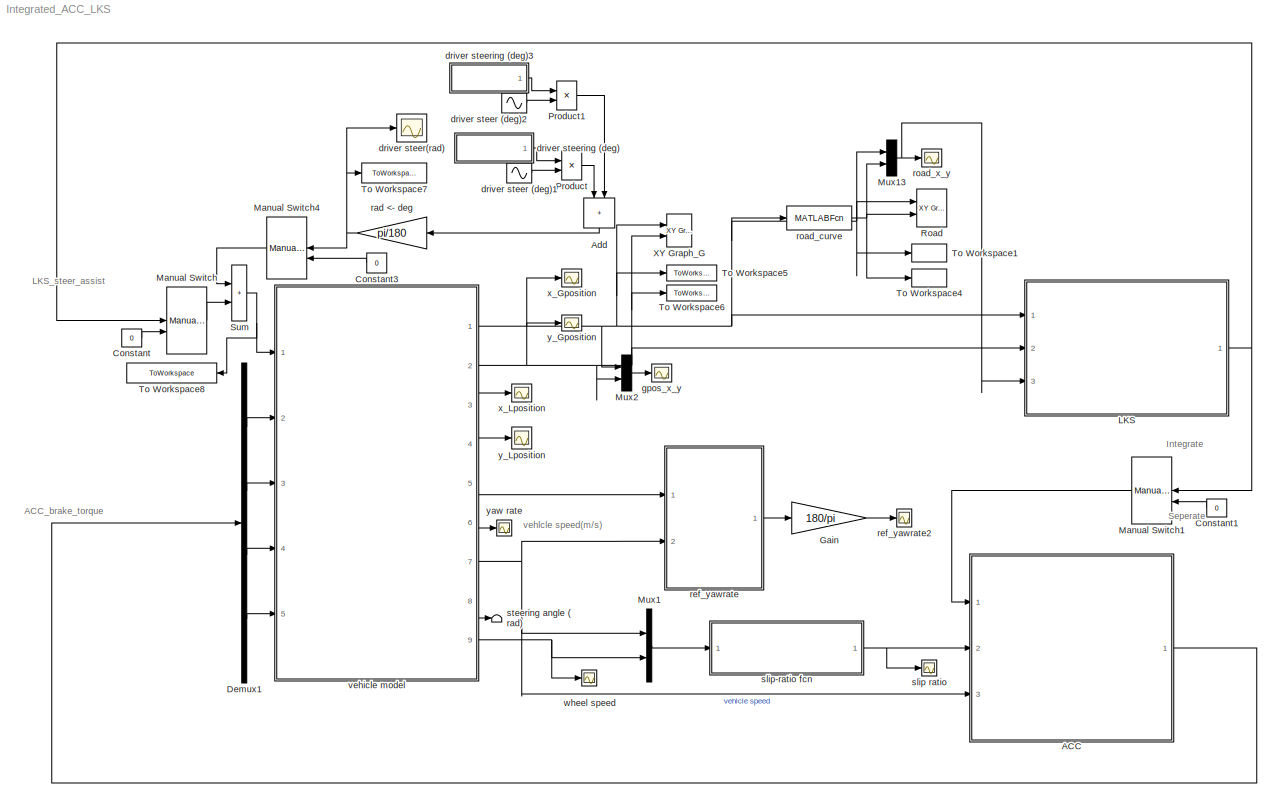
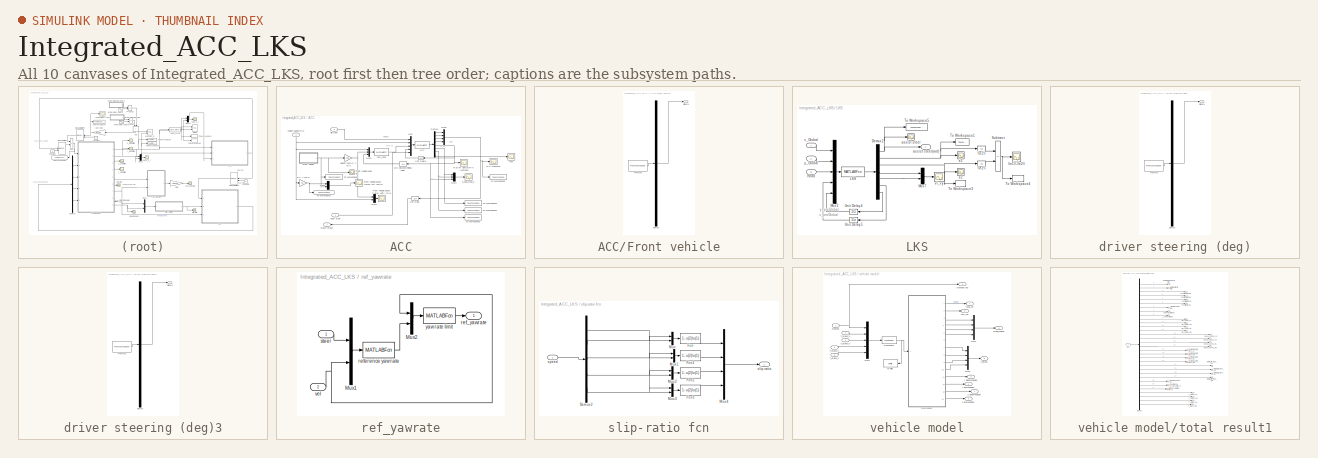
[diagram: thumbnail index - all 10 canvases of the model, root first then tree order]
MODEL Integrated_ACC_LKS
KIND model
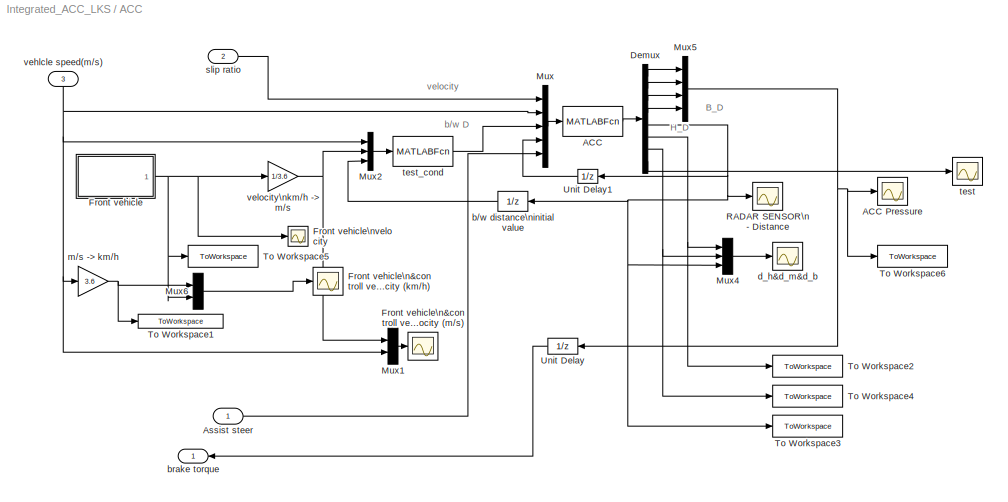
BLOCK [SubSystem] ACC
  Ports = [3, 1]
  RequestExecContextInheritance = off
  SID = 400
BLOCK [MATLABFcn] ACC/ACC
  MATLABFcn = acc2
  Ports = [1, 1]
  SID = 2
BLOCK [Scope] ACC/ACC Pressure
  Floating = off
  NumInputPorts = 1
  Ports = [1]
  SID = 3
  ScopeSpecificationString = Simulink.scopes.TimeScopeBlockCfg('CurrentConfiguration', extmgr.ConfigurationSet(extmgr.Configuration('Core','General UI',true),extmgr.Configuration('Core','Source UI',true),extmgr.Configuration('Sources','WiredSimulink',true,'DataLoggingVariableName','ScopeData8','DataLoggingSaveFormat','StructureWithTime','DataLoggingDecimation','1','DataLoggingDecimateData',true),extmgr.Configuration('Visuals'...<+1780ch>
BLOCK [Inport] ACC/Assist steer
  NameLocation = top
  SID = 471
BLOCK [Demux] ACC/Demux
  Outputs = 8
  Ports = [1, 8]
  SID = 20
BLOCK [SubSystem] ACC/Front vehicle
  ClipboardFcn = sigbuilder_block('clipboard');
  CloseFcn = sigbuilder_block('close');
  ContinueFcn = sigbuilder_block('continue')
  CopyFcn = sigbuilder_block('copy');
  DeleteFcn = sigbuilder_block('delete');
  LoadFcn = sigbuilder_block('load');
  MaskHideContents = on
  ModelCloseFcn = sigbuilder_block('modelClose');
  NameChangeFcn = sigbuilder_block('namechange');
  OpenFcn = sigbuilder_block('open',[306.75 214.5 550.5 399.75 ]);
  PauseFcn = sigbuilder_block('pause')
  Ports = [0, 1]
  PreSaveFcn = sigbuilder_block('preSave');
  RequestExecContextInheritance = off
  SID = 37
  StartFcn = sigbuilder_block('start');
  StopFcn = sigbuilder_block('stop');
  Tag = STV Subsys
BLOCK [Demux] ACC/Front vehicle/Demux
  DisplayOption = none
  Outputs = 1
  Ports = [1, 1]
  SID = 38
  Tag = STV Demux
BLOCK [FromWorkspace] ACC/Front vehicle/FromWs
  SID = 39
  SigBuilderData = DataTag0
  Tag = STV FromWs
  VariableName = tuvar
  VnvData = DataTag1
BLOCK [Outport] ACC/Front vehicle/Signal 1
  SID = 40
  Tag = STV Outport
BLOCK [Scope] ACC/Front vehicle\n&controll vehicle\nvelocity (km//h)
  Floating = off
  NumInputPorts = 1
  Ports = [1]
  SID = 198
  ScopeSpecificationString = Simulink.scopes.TimeScopeBlockCfg('CurrentConfiguration', extmgr.ConfigurationSet(extmgr.Configuration('Core','General UI',true),extmgr.Configuration('Core','Source UI',true),extmgr.Configuration('Sources','WiredSimulink',true,'DataLoggingVariableName','ScopeData15','DataLoggingSaveFormat','StructureWithTime','DataLoggingDecimation','1','DataLoggingDecimateData',true),extmgr.Configuration('Visuals...<+1788ch>
BLOCK [Scope] ACC/Front vehicle\n&controll vehicle\nvelocity (m//s)
  Floating = off
  NumInputPorts = 1
  Ports = [1]
  SID = 490
  ScopeSpecificationString = Simulink.scopes.TimeScopeBlockCfg('CurrentConfiguration', extmgr.ConfigurationSet(extmgr.Configuration('Core','General UI',true),extmgr.Configuration('Core','Source UI',true),extmgr.Configuration('Sources','WiredSimulink',true,'DataLoggingVariableName','ScopeData19','DataLoggingSaveFormat','StructureWithTime','DataLoggingDecimation','1','DataLoggingDecimateData',true),extmgr.Configuration('Visuals...<+1774ch>
BLOCK [Scope] ACC/Front vehicle\nvelocity
  Floating = off
  NumInputPorts = 1
  Ports = [1]
  SID = 23
  ScopeSpecificationString = Simulink.scopes.TimeScopeBlockCfg('CurrentConfiguration', extmgr.ConfigurationSet(extmgr.Configuration('Core','General UI',true),extmgr.Configuration('Core','Source UI',true),extmgr.Configuration('Sources','WiredSimulink',true,'DataLoggingVariableName','ScopeData12','DataLoggingSaveFormat','StructureWithTime','DataLoggingDecimation','1','DataLoggingDecimateData',true),extmgr.Configuration('Visuals...<+1741ch>
BLOCK [Mux] ACC/Mux
  DisplayOption = bar
  Inputs = 5
  Ports = [5, 1]
  SID = 30
BLOCK [Mux] ACC/Mux1
  DisplayOption = bar
  Inputs = 2
  Ports = [2, 1]
  SID = 491
BLOCK [Mux] ACC/Mux2
  DisplayOption = bar
  Inputs = 3
  Ports = [3, 1]
  SID = 32
BLOCK [Mux] ACC/Mux4
  DisplayOption = bar
  Inputs = 3
  Ports = [3, 1]
  SID = 34
BLOCK [Mux] ACC/Mux5
  DisplayOption = bar
  Ports = [4, 1]
  SID = 35
BLOCK [Mux] ACC/Mux6
  DisplayOption = bar
  Inputs = 2
  Ports = [2, 1]
  SID = 197
BLOCK [Scope] ACC/RADAR SENSOR\n- Distance
  Floating = off
  NumInputPorts = 1
  Ports = [1]
  SID = 36
  ScopeSpecificationString = Simulink.scopes.TimeScopeBlockCfg('CurrentConfiguration', extmgr.ConfigurationSet(extmgr.Configuration('Core','General UI',true),extmgr.Configuration('Core','Source UI',true),extmgr.Configuration('Sources','WiredSimulink',true,'DataLoggingVariableName','ScopeData4','DataLoggingSaveFormat','StructureWithTime','DataLoggingDecimation','1','DataLoggingDecimateData',true),extmgr.Configuration('Visuals'...<+1765ch>
BLOCK [ToWorkspace] ACC/To Workspace1
  MaxDataPoints = inf
  Ports = [1]
  SID = 460
  SampleTime = -1
  VariableName = lon_speed_int
BLOCK [ToWorkspace] ACC/To Workspace2
  MaxDataPoints = inf
  Ports = [1]
  SID = 461
  SampleTime = -1
  VariableName = headway_di
BLOCK [ToWorkspace] ACC/To Workspace3
  MaxDataPoints = inf
  Ports = [1]
  SID = 462
  SampleTime = -1
  VariableName = between_di
BLOCK [ToWorkspace] ACC/To Workspace4
  MaxDataPoints = inf
  Ports = [1]
  SID = 463
  SampleTime = -1
  VariableName = min_di
BLOCK [ToWorkspace] ACC/To Workspace5
  MaxDataPoints = inf
  Ports = [1]
  SID = 459
  SampleTime = -1
  VariableName = front_speed
BLOCK [ToWorkspace] ACC/To Workspace6
  MaxDataPoints = inf
  Ports = [1]
  SID = 464
  SampleTime = -1
  VariableName = brake_torque
BLOCK [UnitDelay] ACC/Unit Delay
  HasFrameUpgradeWarning = on
  NameLocation = top
  SID = 46
  SampleTime = 0.005
BLOCK [UnitDelay] ACC/Unit Delay1
  HasFrameUpgradeWarning = on
  InitialCondition = 55
  NameLocation = top
  SID = 185
  SampleTime = -1
BLOCK [UnitDelay] ACC/b//w distance\ninitial value
  HasFrameUpgradeWarning = on
  InitialCondition = 55
  SID = 47
  SampleTime = -1
BLOCK [Outport] ACC/brake torque
  SID = 403
BLOCK [Scope] ACC/d_h&d_m&d_b
  Floating = off
  NumInputPorts = 1
  Ports = [1]
  SID = 245
  ScopeSpecificationString = Simulink.scopes.TimeScopeBlockCfg('CurrentConfiguration', extmgr.ConfigurationSet(extmgr.Configuration('Core','General UI',true),extmgr.Configuration('Core','Source UI',true),extmgr.Configuration('Sources','WiredSimulink',true,'DataLoggingVariableName','ScopeData20','DataLoggingSaveFormat','StructureWithTime','DataLoggingDecimation','1','DataLoggingDecimateData',true),extmgr.Configuration('Visuals...<+1786ch>
BLOCK [Gain] ACC/m//s -> km//h
  Gain = 3.6
  SID = 317
BLOCK [Inport] ACC/slip ratio
  Port = 2
  SID = 472
BLOCK [Scope] ACC/test
  Floating = off
  NumInputPorts = 1
  Ports = [1]
  SID = 479
  ScopeSpecificationString = Simulink.scopes.TimeScopeBlockCfg('CurrentConfiguration', extmgr.ConfigurationSet(extmgr.Configuration('Core','General UI',true),extmgr.Configuration('Core','Source UI',true),extmgr.Configuration('Sources','WiredSimulink',true,'DataLoggingVariableName','ScopeData13','DataLoggingSaveFormat','StructureWithTime','DataLoggingDecimation','1','DataLoggingDecimateData',true),extmgr.Configuration('Visuals...<+1738ch>
BLOCK [MATLABFcn] ACC/test_cond
  MATLABFcn = test_Condition
  Ports = [1, 1]
  SID = 100
BLOCK [Inport] ACC/vehlcle speed(m//s)
  NameLocation = right
  Port = 3
  SID = 473
BLOCK [Gain] ACC/velocity\nkm//h -> m//s
  Gain = 1/3.6
  OutDataTypeStr = Inherit: Same as input
  ParamDataTypeStr = Inherit: Same as input
  SID = 173
  SaturateOnIntegerOverflow = on
BLOCK [Sum] Add
  IconShape = rectangular
  NameLocation = left
  Ports = [2, 1]
  SID = 369
BLOCK [Constant] Constant
  SID = 16
  Value = 0
BLOCK [Constant] Constant1
  NameLocation = top
  SID = 476
  Value = 0
BLOCK [Constant] Constant3
  SID = 19
  Value = 0
BLOCK [Demux] Demux1
  DisplayOption = none
  Ports = [1, 4]
  SID = 21
BLOCK [Gain] Gain
  Gain = 180/pi
  OutDataTypeStr = Inherit: Same as input
  ParamDataTypeStr = Inherit: Same as input
  SID = 24
  SaturateOnIntegerOverflow = on
BLOCK [SubSystem] LKS
  Ports = [3, 1]
  RequestExecContextInheritance = off
  SID = 395
BLOCK [Demux] LKS/Demux2
  Outputs = 7
  Ports = [1, 7]
  SID = 333
BLOCK [MATLABFcn] LKS/LKS
  MATLABFcn = lks
  Ports = [1, 1]
  SID = 332
BLOCK [Mux] LKS/Mux3
  DisplayOption = bar
  Inputs = 5
  Ports = [5, 1]
  SID = 319
BLOCK [Mux] LKS/Mux7
  DisplayOption = bar
  Inputs = 2
  Ports = [2, 1]
  SID = 340
BLOCK [Inport] LKS/Road
  Port = 3
  SID = 398
BLOCK [Sum] LKS/Subtract
  IconShape = rectangular
  Inputs = +-
  Ports = [2, 1]
  SID = 405
BLOCK [ToWorkspace] LKS/To Workspace1
  MaxDataPoints = inf
  Ports = [1]
  SID = 466
  SampleTime = -1
  VariableName = e1
BLOCK [ToWorkspace] LKS/To Workspace3
  MaxDataPoints = inf
  Ports = [1]
  SID = 467
  SampleTime = -1
  VariableName = e2
BLOCK [ToWorkspace] LKS/To Workspace4
  MaxDataPoints = inf
  Ports = [1]
  SID = 468
  SampleTime = -1
  VariableName = e1_e2
BLOCK [ToWorkspace] LKS/To Workspace5
  MaxDataPoints = inf
  Ports = [1]
  SID = 465
  SampleTime = -1
  VariableName = assist_steer
BLOCK [UnitDelay] LKS/Unit Delay4
  HasFrameUpgradeWarning = on
  NameLocation = top
  SID = 344
  SampleTime = -1
BLOCK [UnitDelay] LKS/Unit Delay5
  HasFrameUpgradeWarning = on
  NameLocation = top
  SID = 345
  SampleTime = -1
BLOCK [Abs] LKS/\\e1\\
  SID = 406
  SaturateOnIntegerOverflow = off
BLOCK [Scope] LKS/<path>
  Floating = off
  NumInputPorts = 1
  Ports = [1]
  SID = 409
  ScopeSpecificationString = C++SS(StrPVP('Location','[1685, 56, 2956, 1018]'),StrPVP('Open','off'),StrPVP('ZoomMode','xonly'),MxPVP('AxesTitles',54,'struct(''axes1'',''%<SignalLabel>'')'),MxPVP('ScopeGraphics',57,'struct(''FigureColor'',''[0.5 0.5 0.5]'',''AxesColor'',''[0 0 0]'',''AxesTickColor'',''[1 1 1]'',''LineColors'',''[1 1 0;1 0 1;0 1 1;1 0 0;0 1 0;0 0 1]'',''LineStyles'',''-|-|-|-|-|-'',''LineWidths'',''[0.5 0.5 0.5...<+300ch>
BLOCK [Abs] LKS/\\e2\\
  SID = 408
  SaturateOnIntegerOverflow = off
BLOCK [Scope] LKS/assist steer
  Floating = off
  NumInputPorts = 1
  Ports = [1]
  SID = 348
  ScopeSpecificationString = C++SS(StrPVP('Location','[5, 52, 1685, 1015]'),StrPVP('Open','off'),StrPVP('ZoomMode','xonly'),MxPVP('AxesTitles',54,'struct(''axes1'',''%<SignalLabel>'')'),MxPVP('ScopeGraphics',57,'struct(''FigureColor'',''[0.5 0.5 0.5]'',''AxesColor'',''[0 0 0]'',''AxesTickColor'',''[1 1 1]'',''LineColors'',''[1 1 0;1 0 1;0 1 1;1 0 0;0 1 0;0 0 1]'',''LineStyles'',''-|-|-|-|-|-'',''LineWidths'',''[0.5 0.5 0.5 0....<+366ch>
BLOCK [Outport] LKS/assist steer(rad)
  SID = 399
BLOCK [Scope] LKS/e1
  Floating = off
  NumInputPorts = 1
  Ports = [1]
  SID = 337
  ScopeSpecificationString = C++SS(StrPVP('Location','[395, 52, 1675, 995]'),StrPVP('Open','off'),MxPVP('AxesTitles',54,'struct(''axes1'',''%<SignalLabel>'')'),MxPVP('ScopeGraphics',57,'struct(''FigureColor'',''[0.5 0.5 0.5]'',''AxesColor'',''[0 0 0]'',''AxesTickColor'',''[1 1 1]'',''LineColors'',''[1 1 0;1 0 1;0 1 1;1 0 0;0 1 0;0 0 1]'',''LineStyles'',''-|-|-|-|-|-'',''LineWidths'',''[0.5 0.5 0.5 0.5 0.5 0.5]'',''MarkerStyle...<+340ch>
BLOCK [Scope] LKS/e2
  Floating = off
  NumInputPorts = 1
  Ports = [1]
  SID = 338
  ScopeSpecificationString = C++SS(StrPVP('Location','[1, 52, 1681, 1015]'),StrPVP('Open','off'),MxPVP('AxesTitles',54,'struct(''axes1'',''%<SignalLabel>'')'),MxPVP('ScopeGraphics',57,'struct(''FigureColor'',''[0.5 0.5 0.5]'',''AxesColor'',''[0 0 0]'',''AxesTickColor'',''[1 1 1]'',''LineColors'',''[1 1 0;1 0 1;0 1 1;1 0 0;0 1 0;0 0 1]'',''LineStyles'',''-|-|-|-|-|-'',''LineWidths'',''[0.5 0.5 0.5 0.5 0.5 0.5]'',''MarkerStyles...<+339ch>
BLOCK [Scope] LKS/vl_xy
  Floating = off
  NumInputPorts = 1
  Ports = [1]
  SID = 339
  ScopeSpecificationString = C++SS(StrPVP('Location','[1680, 59, 2960, 1002]'),StrPVP('Open','off'),MxPVP('AxesTitles',54,'struct(''axes1'',''%<SignalLabel>'')'),MxPVP('ScopeGraphics',57,'struct(''FigureColor'',''[0.5 0.5 0.5]'',''AxesColor'',''[0 0 0]'',''AxesTickColor'',''[1 1 1]'',''LineColors'',''[1 1 0;1 0 1;0 1 1;1 0 0;0 1 0;0 0 1]'',''LineStyles'',''-|-|-|-|-|-'',''LineWidths'',''[0.5 0.5 0.5 0.5 0.5 0.5]'',''MarkerSty...<+342ch>
BLOCK [Inport] LKS/x_Global
  SID = 396
BLOCK [Inport] LKS/y_Global
  Port = 2
  SID = 397
BLOCK [ManualSwitch] Manual Switch
  SID = 25
BLOCK [ManualSwitch] Manual Switch1
  CurrentSetting = 0
  NameLocation = top
  SID = 475
BLOCK [ManualSwitch] Manual Switch4
  NameLocation = top
  SID = 29
BLOCK [Mux] Mux1
  DisplayOption = bar
  Inputs = 2
  Ports = [2, 1]
  SID = 31
BLOCK [Mux] Mux13
  DisplayOption = bar
  Inputs = 2
  Ports = [2, 1]
  SID = 325
BLOCK [Mux] Mux2
  DisplayOption = bar
  Inputs = 2
  Ports = [2, 1]
  SID = 494
BLOCK [Product] Product
  Ports = [2, 1]
  RndMeth = Zero
  SID = 352
BLOCK [Product] Product1
  Ports = [2, 1]
  RndMeth = Zero
  SID = 487
BLOCK [Reference] Road  REF=simulink/Sinks/XY Graph
  Ports = [2]
  RTWMemSecDataConstants = Inherit from model
  RTWMemSecDataInternal = Inherit from model
  RTWMemSecDataParameters = Inherit from model
  RTWMemSecFuncExecute = Inherit from model
  RTWMemSecFuncInitTerm = Inherit from model
  SID = 322
  SourceBlock = simulink/Sinks/XY Graph
  SourceProductBaseCode = SL
  SourceType = XY scope.
  st = 0
  xmax = 500
  xmin = 0
  ymax = 1
  ymin = -100
BLOCK [Sum] Sum
  IconShape = rectangular
  Inputs = |++
  Ports = [2, 1]
  SID = 41
  SaturateOnIntegerOverflow = on
BLOCK [ToWorkspace] To Workspace1
  MaxDataPoints = inf
  Ports = [1]
  SID = 457
  SampleTime = -1
  VariableName = Roadx
BLOCK [ToWorkspace] To Workspace4
  MaxDataPoints = inf
  Ports = [1]
  SID = 458
  SampleTime = -1
  VariableName = Roady
BLOCK [ToWorkspace] To Workspace5
  MaxDataPoints = inf
  Ports = [1]
  SID = 454
  SampleTime = -1
  VariableName = xgp_with
BLOCK [ToWorkspace] To Workspace6
  MaxDataPoints = inf
  Ports = [1]
  SID = 456
  SampleTime = -1
  VariableName = ygp_with
BLOCK [ToWorkspace] To Workspace7
  MaxDataPoints = inf
  Ports = [1]
  SID = 469
  SampleTime = -1
  VariableName = driver_steer
BLOCK [ToWorkspace] To Workspace8
  MaxDataPoints = inf
  NameLocation = top
  Ports = [1]
  SID = 470
  SampleTime = -1
  VariableName = command_steer
BLOCK [Reference] XY Graph_G  REF=simulink/Sinks/XY Graph
  Ports = [2]
  RTWMemSecDataConstants = Inherit from model
  RTWMemSecDataInternal = Inherit from model
  RTWMemSecDataParameters = Inherit from model
  RTWMemSecFuncExecute = Inherit from model
  RTWMemSecFuncInitTerm = Inherit from model
  SID = 327
  SourceBlock = simulink/Sinks/XY Graph
  SourceProductBaseCode = SL
  SourceType = XY scope.
  st = 0
  xmax = 500
  xmin = 0
  ymax = 1
  ymin = -100
BLOCK [Sin] driver steer (deg)1
  Amplitude = 0.8
  Frequency = 0.34907
  Phase = 0.34898
  Ports = [0, 1]
  SID = 368
  SampleTime = 0
BLOCK [Sin] driver steer (deg)2
  Amplitude = 0.8
  Frequency = 0.165347
  Phase = 2.64
  Ports = [0, 1]
  SID = 482
  SampleTime = 0
BLOCK [Scope] driver steer(rad)
  Floating = off
  NumInputPorts = 1
  Ports = [1]
  SID = 180
  ScopeSpecificationString = C++SS(StrPVP('Location','[5, 52, 1685, 1015]'),StrPVP('Open','off'),MxPVP('AxesTitles',54,'struct(''axes1'',''%<SignalLabel>'')'),MxPVP('ScopeGraphics',57,'struct(''FigureColor'',''[0.5 0.5 0.5]'',''AxesColor'',''[0 0 0]'',''AxesTickColor'',''[1 1 1]'',''LineColors'',''[1 1 0;1 0 1;0 1 1;1 0 0;0 1 0;0 0 1]'',''LineStyles'',''-|-|-|-|-|-'',''LineWidths'',''[0.5 0.5 0.5 0.5 0.5 0.5]'',''MarkerStyles...<+340ch>
BLOCK [SubSystem] driver steering (deg)
  ClipboardFcn = sigbuilder_block('clipboard');
  CloseFcn = sigbuilder_block('close');
  ContinueFcn = sigbuilder_block('continue')
  CopyFcn = sigbuilder_block('copy');
  DeleteFcn = sigbuilder_block('delete');
  LoadFcn = sigbuilder_block('load');
  MaskHideContents = on
  ModelCloseFcn = sigbuilder_block('modelClose');
  NameChangeFcn = sigbuilder_block('namechange');
  NameLocation = top
  OpenFcn = sigbuilder_block('open',[323.25 135.75 558.75 274.5 ]);
  PauseFcn = sigbuilder_block('pause')
  Ports = [0, 1]
  PreSaveFcn = sigbuilder_block('preSave');
  RequestExecContextInheritance = off
  SID = 364
  StartFcn = sigbuilder_block('start');
  StopFcn = sigbuilder_block('stop');
  Tag = STV Subsys
BLOCK [Demux] driver steering (deg)/Demux
  DisplayOption = none
  Outputs = 1
  Ports = [1, 1]
  SID = 365
  Tag = STV Demux
BLOCK [FromWorkspace] driver steering (deg)/FromWs
  SID = 366
  SigBuilderData = DataTag2
  Tag = STV FromWs
  VariableName = tuvar
  VnvData = DataTag3
BLOCK [Outport] driver steering (deg)/Signal 1
  SID = 367
  Tag = STV Outport
BLOCK [SubSystem] driver steering (deg)3
  ClipboardFcn = sigbuilder_block('clipboard');
  CloseFcn = sigbuilder_block('close');
  ContinueFcn = sigbuilder_block('continue')
  CopyFcn = sigbuilder_block('copy');
  DeleteFcn = sigbuilder_block('delete');
  LoadFcn = sigbuilder_block('load');
  MaskHideContents = on
  ModelCloseFcn = sigbuilder_block('modelClose');
  NameChangeFcn = sigbuilder_block('namechange');
  NameLocation = top
  OpenFcn = sigbuilder_block('open',[323.25 135.75 558.75 274.5 ]);
  PauseFcn = sigbuilder_block('pause')
  Ports = [0, 1]
  PreSaveFcn = sigbuilder_block('preSave');
  RequestExecContextInheritance = off
  SID = 483
  StartFcn = sigbuilder_block('start');
  StopFcn = sigbuilder_block('stop');
  Tag = STV Subsys
BLOCK [Demux] driver steering (deg)3/Demux
  DisplayOption = none
  Outputs = 1
  Ports = [1, 1]
  SID = 484
  Tag = STV Demux
BLOCK [FromWorkspace] driver steering (deg)3/FromWs
  SID = 485
  SigBuilderData = DataTag4
  Tag = STV FromWs
  VariableName = tuvar
  VnvData = DataTag5
BLOCK [Outport] driver steering (deg)3/Signal 1
  SID = 486
  Tag = STV Outport
BLOCK [Scope] gpos_x_y
  Floating = off
  NumInputPorts = 1
  Ports = [1]
  SID = 495
  ScopeSpecificationString = C++SS(StrPVP('Location','[395, 52, 1675, 995]'),StrPVP('Open','off'),MxPVP('AxesTitles',54,'struct(''axes1'',''%<SignalLabel>'')'),MxPVP('ScopeGraphics',57,'struct(''FigureColor'',''[0.5 0.5 0.5]'',''AxesColor'',''[0 0 0]'',''AxesTickColor'',''[1 1 1]'',''LineColors'',''[1 1 0;1 0 1;0 1 1;1 0 0;0 1 0;0 0 1]'',''LineStyles'',''-|-|-|-|-|-'',''LineWidths'',''[0.5 0.5 0.5 0.5 0.5 0.5]'',''MarkerStyle...<+341ch>
BLOCK [Gain] rad <- deg
  Gain = pi/180
  NameLocation = top
  OutDataTypeStr = Inherit: Same as input
  ParamDataTypeStr = Inherit: Same as input
  SID = 49
  SaturateOnIntegerOverflow = on
BLOCK [SubSystem] ref_yawrate
  Ports = [2, 1]
  RequestExecContextInheritance = off
  SID = 64
BLOCK [Mux] ref_yawrate/Mux1
  DisplayOption = bar
  Inputs = 2
  Ports = [2, 1]
  SID = 67
BLOCK [Mux] ref_yawrate/Mux2
  DisplayOption = bar
  Inputs = 2
  Ports = [2, 1]
  SID = 68
BLOCK [Outport] ref_yawrate/ref_yawrate
  SID = 71
BLOCK [MATLABFcn] ref_yawrate/reference yaw rate
  MATLABFcn = ref_yawrate
  Ports = [1, 1]
  SID = 69
BLOCK [Inport] ref_yawrate/steer
  SID = 65
BLOCK [Inport] ref_yawrate/vel
  Port = 2
  SID = 66
BLOCK [MATLABFcn] ref_yawrate/yaw rate limit
  MATLABFcn = yaw_rate_limit
  Ports = [1, 1]
  SID = 70
BLOCK [Scope] ref_yawrate2
  Floating = off
  NumInputPorts = 1
  Ports = [1]
  SID = 72
  ScopeSpecificationString = Simulink.scopes.TimeScopeBlockCfg('CurrentConfiguration', extmgr.ConfigurationSet(extmgr.Configuration('Core','General UI',true),extmgr.Configuration('Core','Source UI',true),extmgr.Configuration('Sources','WiredSimulink',true,'DataLoggingVariableName','ScopeData1','DataLoggingSaveFormat','StructureWithTime','DataLoggingDecimation','1','DataLoggingDecimateData',true),extmgr.Configuration('Visuals'...<+1734ch>
BLOCK [MATLABFcn] road_curve
  MATLABFcn = road_curve
  Ports = [1, 1]
  SID = 321
BLOCK [Scope] road_x_y
  Floating = off
  NumInputPorts = 1
  Ports = [1]
  SID = 326
  ScopeSpecificationString = C++SS(StrPVP('Location','[395, 52, 1675, 995]'),StrPVP('Open','off'),MxPVP('AxesTitles',54,'struct(''axes1'',''%<SignalLabel>'')'),MxPVP('ScopeGraphics',57,'struct(''FigureColor'',''[0.5 0.5 0.5]'',''AxesColor'',''[0 0 0]'',''AxesTickColor'',''[1 1 1]'',''LineColors'',''[1 1 0;1 0 1;0 1 1;1 0 0;0 1 0;0 0 1]'',''LineStyles'',''-|-|-|-|-|-'',''LineWidths'',''[0.5 0.5 0.5 0.5 0.5 0.5]'',''MarkerStyle...<+308ch>
BLOCK [Scope] slip ratio
  Floating = off
  NumInputPorts = 1
  Ports = [1]
  SID = 493
  ScopeSpecificationString = Simulink.scopes.TimeScopeBlockCfg('CurrentConfiguration', extmgr.ConfigurationSet(extmgr.Configuration('Core','General UI',true),extmgr.Configuration('Core','Source UI',true),extmgr.Configuration('Sources','WiredSimulink',true,'DataLoggingVariableName','ScopeData21','DataLoggingSaveFormat','StructureWithTime','DataLoggingDecimation','1','DataLoggingDecimateData',true),extmgr.Configuration('Visuals...<+1805ch>
BLOCK [SubSystem] slip-ratio fcn
  Ports = [1, 1]
  RequestExecContextInheritance = off
  SID = 86
BLOCK [Demux] slip-ratio fcn/Demux2
  DisplayOption = none
  Outputs = 5
  Ports = [1, 5]
  SID = 88
BLOCK [Fcn] slip-ratio fcn/Fcn
  Expr = 1- u(2)/u(1)
  SID = 89
BLOCK [Fcn] slip-ratio fcn/Fcn1
  Expr = 1- u(2)/u(1)
  SID = 90
BLOCK [Fcn] slip-ratio fcn/Fcn2
  Expr = 1- u(2)/u(1)
  SID = 91
BLOCK [Fcn] slip-ratio fcn/Fcn3
  Expr = 1- u(2)/u(1)
  SID = 92
BLOCK [Mux] slip-ratio fcn/Mux
  DisplayOption = bar
  Inputs = 2
  Ports = [2, 1]
  SID = 93
BLOCK [Mux] slip-ratio fcn/Mux1
  DisplayOption = bar
  Inputs = 2
  Ports = [2, 1]
  SID = 94
BLOCK [Mux] slip-ratio fcn/Mux2
  DisplayOption = bar
  Inputs = 2
  Ports = [2, 1]
  SID = 95
BLOCK [Mux] slip-ratio fcn/Mux3
  DisplayOption = bar
  Inputs = 2
  Ports = [2, 1]
  SID = 96
BLOCK [Mux] slip-ratio fcn/Mux4
  DisplayOption = bar
  Ports = [4, 1]
  SID = 97
BLOCK [Outport] slip-ratio fcn/slip-ratio
  SID = 98
BLOCK [Inport] slip-ratio fcn/speed
  SID = 87
BLOCK [Terminator] steering angle ( rad)
  SID = 313
BLOCK [SubSystem] vehicle model
  Ports = [5, 9]
  RequestExecContextInheritance = off
  SID = 118
BLOCK [Outport] vehicle model/Long_vel
  Port = 7
  SID = 310
BLOCK [Mux] vehicle model/Mux1
  DisplayOption = bar
  Ports = [4, 1]
  SID = 124
BLOCK [Mux] vehicle model/Mux2
  DisplayOption = bar
  Inputs = 5
  Ports = [5, 1]
  SID = 125
BLOCK [Mux] vehicle model/Mux3
  DisplayOption = bar
  Ports = [4, 1]
  SID = 126
BLOCK [S-Function] vehicle model/S-Function1
  EnableBusSupport = off
  FunctionName = csfn_7dof
  Ports = [1, 1]
  SFcnIsStateOwnerBlock = off
  SFunctionDeploymentMode = off
  SID = 128
BLOCK [Outport] vehicle model/T_Brake
  Port = 8
  SID = 311
BLOCK [Inport] vehicle model/T_brake_fl
  Port = 2
  SID = 120
BLOCK [Inport] vehicle model/T_brake_fr
  Port = 3
  SID = 121
BLOCK [Inport] vehicle model/T_brake_rl
  Port = 4
  SID = 122
BLOCK [Inport] vehicle model/T_brake_rr
  Port = 5
  SID = 123
BLOCK [ToFile] vehicle model/To File1
  Filename = steer.mat
  MatrixName = steer
  NameLocation = top
  Ports = [1]
  SID = 129
BLOCK [Inport] vehicle model/steering
  SID = 119
BLOCK [Outport] vehicle model/steering(rad)
  Port = 5
  SID = 308
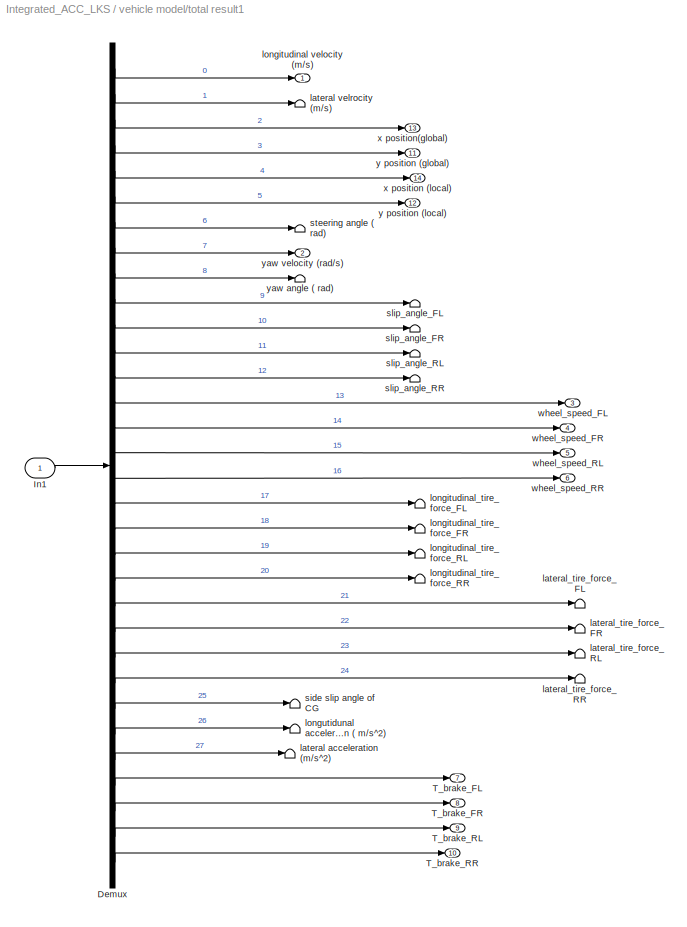
BLOCK [SubSystem] vehicle model/total result1
  Ports = [1, 14]
  RequestExecContextInheritance = off
  SID = 130
BLOCK [Demux] vehicle model/total result1/Demux
  DisplayOption = none
  Outputs = 32
  Ports = [1, 32]
  SID = 132
BLOCK [Inport] vehicle model/total result1/In1
  NameLocation = top
  SID = 131
BLOCK [Outport] vehicle model/total result1/T_brake_FL
  Port = 7
  SID = 156
BLOCK [Outport] vehicle model/total result1/T_brake_FR
  Port = 8
  SID = 157
BLOCK [Outport] vehicle model/total result1/T_brake_RL
  Port = 9
  SID = 158
BLOCK [Outport] vehicle model/total result1/T_brake_RR
  Port = 10
  SID = 159
BLOCK [Terminator] vehicle model/total result1/lateral acceleration (m//s^2)
  SID = 133
BLOCK [Terminator] vehicle model/total result1/lateral velrocity (m//s)
  SID = 134
BLOCK [Terminator] vehicle model/total result1/lateral_tire_force_FL
  SID = 135
BLOCK [Terminator] vehicle model/total result1/lateral_tire_force_FR
  SID = 136
BLOCK [Terminator] vehicle model/total result1/lateral_tire_force_RL
  SID = 137
BLOCK [Terminator] vehicle model/total result1/lateral_tire_force_RR
  SID = 138
BLOCK [Outport] vehicle model/total result1/longitudinal velocity  (m//s)
  SID = 150
BLOCK [Terminator] vehicle model/total result1/longitudinal_tire_force_FL
  SID = 139
BLOCK [Terminator] vehicle model/total result1/longitudinal_tire_force_FR
  SID = 140
BLOCK [Terminator] vehicle model/total result1/longitudinal_tire_force_RL
  SID = 141
BLOCK [Terminator] vehicle model/total result1/longitudinal_tire_force_RR
  SID = 142
BLOCK [Terminator] vehicle model/total result1/longutidunal acceleration ( m//s^2)
  SID = 143
BLOCK [Terminator] vehicle model/total result1/side slip angle of CG
  SID = 144
BLOCK [Terminator] vehicle model/total result1/slip_angle_FL
  SID = 300
BLOCK [Terminator] vehicle model/total result1/slip_angle_FR
  SID = 301
BLOCK [Terminator] vehicle model/total result1/slip_angle_RL
  SID = 302
BLOCK [Terminator] vehicle model/total result1/slip_angle_RR
  SID = 303
BLOCK [Terminator] vehicle model/total result1/steering angle ( rad)
  SID = 145
BLOCK [Outport] vehicle model/total result1/wheel_speed_FL
  Port = 3
  SID = 152
BLOCK [Outport] vehicle model/total result1/wheel_speed_FR
  Port = 4
  SID = 153
BLOCK [Outport] vehicle model/total result1/wheel_speed_RL
  Port = 5
  SID = 154
BLOCK [Outport] vehicle model/total result1/wheel_speed_RR
  Port = 6
  SID = 155
BLOCK [Outport] vehicle model/total result1/x position (local)
  Port = 14
  SID = 213
BLOCK [Outport] vehicle model/total result1/x position(global)
  Port = 13
  SID = 212
BLOCK [Outport] vehicle model/total result1/y position (global)
  Port = 11
  SID = 160
BLOCK [Outport] vehicle model/total result1/y position (local)
  Port = 12
  SID = 211
BLOCK [Terminator] vehicle model/total result1/yaw angle ( rad)
  SID = 149
BLOCK [Outport] vehicle model/total result1/yaw velocity (rad//s)
  Port = 2
  SID = 151
BLOCK [Outport] vehicle model/wheel_speed
  Port = 9
  SID = 312
BLOCK [Outport] vehicle model/x global position
  SID = 304
BLOCK [Outport] vehicle model/x local position
  Port = 3
  SID = 306
BLOCK [Outport] vehicle model/y global position
  Port = 2
  SID = 305
BLOCK [Outport] vehicle model/y local position
  Port = 4
  SID = 307
BLOCK [Outport] vehicle model/yaw_vel
  Port = 6
  SID = 309
BLOCK [Scope] wheel speed
  Floating = off
  NumInputPorts = 1
  Ports = [1]
  SID = 450
  ScopeSpecificationString = C++SS(StrPVP('Location','[5, 60, 1685, 1023]'),StrPVP('Open','off'),StrPVP('ZoomMode','yonly'),MxPVP('AxesTitles',54,'struct(''axes1'',''%<SignalLabel>'')'),MxPVP('ScopeGraphics',57,'struct(''FigureColor'',''[0.5 0.5 0.5]'',''AxesColor'',''[0 0 0]'',''AxesTickColor'',''[1 1 1]'',''LineColors'',''[1 1 0;1 0 1;0 1 1;1 0 0;0 1 0;0 0 1]'',''LineStyles'',''-|-|-|-|-|-'',''LineWidths'',''[0.5 0.5 0.5 0....<+367ch>
BLOCK [Scope] x_Gposition
  Floating = off
  NumInputPorts = 1
  Ports = [1]
  SID = 221
  ScopeSpecificationString = C++SS(StrPVP('Location','[222, 60, 1502, 1003]'),StrPVP('Open','off'),StrPVP('ZoomMode','yonly'),MxPVP('AxesTitles',54,'struct(''axes1'',''%<SignalLabel>'')'),MxPVP('ScopeGraphics',57,'struct(''FigureColor'',''[0.5 0.5 0.5]'',''AxesColor'',''[0 0 0]'',''AxesTickColor'',''[1 1 1]'',''LineColors'',''[1 1 0;1 0 1;0 1 1;1 0 0;0 1 0;0 0 1]'',''LineStyles'',''-|-|-|-|-|-'',''LineWidths'',''[0.5 0.5 0.5 ...<+369ch>
BLOCK [Scope] x_Lposition
  Floating = off
  NumInputPorts = 1
  Ports = [1]
  SID = 223
  ScopeSpecificationString = C++SS(StrPVP('Location','[655, 185, 1675, 863]'),StrPVP('Open','off'),StrPVP('ZoomMode','xonly'),MxPVP('AxesTitles',54,'struct(''axes1'',''%<SignalLabel>'')'),MxPVP('ScopeGraphics',57,'struct(''FigureColor'',''[0.5 0.5 0.5]'',''AxesColor'',''[0 0 0]'',''AxesTickColor'',''[1 1 1]'',''LineColors'',''[1 1 0;1 0 1;0 1 1;1 0 0;0 1 0;0 0 1]'',''LineStyles'',''-|-|-|-|-|-'',''LineWidths'',''[0.5 0.5 0.5 ...<+369ch>
BLOCK [Scope] y_Gposition
  Floating = off
  NumInputPorts = 1
  Ports = [1]
  SID = 174
  ScopeSpecificationString = C++SS(StrPVP('Location','[1, 52, 1681, 1015]'),StrPVP('Open','off'),MxPVP('AxesTitles',54,'struct(''axes1'',''%<SignalLabel>'')'),MxPVP('ScopeGraphics',57,'struct(''FigureColor'',''[0.5 0.5 0.5]'',''AxesColor'',''[0 0 0]'',''AxesTickColor'',''[1 1 1]'',''LineColors'',''[1 1 0;1 0 1;0 1 1;1 0 0;0 1 0;0 0 1]'',''LineStyles'',''-|-|-|-|-|-'',''LineWidths'',''[0.5 0.5 0.5 0.5 0.5 0.5]'',''MarkerStyles...<+340ch>
BLOCK [Scope] y_Lposition
  Floating = off
  NumInputPorts = 1
  Ports = [1]
  SID = 222
  ScopeSpecificationString = C++SS(StrPVP('Location','[923, 221, 1675, 740]'),StrPVP('Open','off'),StrPVP('ZoomMode','xonly'),MxPVP('AxesTitles',54,'struct(''axes1'',''%<SignalLabel>'')'),MxPVP('ScopeGraphics',57,'struct(''FigureColor'',''[0.5 0.5 0.5]'',''AxesColor'',''[0 0 0]'',''AxesTickColor'',''[1 1 1]'',''LineColors'',''[1 1 0;1 0 1;0 1 1;1 0 0;0 1 0;0 0 1]'',''LineStyles'',''-|-|-|-|-|-'',''LineWidths'',''[0.5 0.5 0.5 ...<+369ch>
BLOCK [Scope] yaw rate
  Floating = off
  NumInputPorts = 1
  Ports = [1]
  SID = 175
  ScopeSpecificationString = Simulink.scopes.TimeScopeBlockCfg('CurrentConfiguration', extmgr.ConfigurationSet(extmgr.Configuration('Core','General UI',true),extmgr.Configuration('Core','Source UI',true),extmgr.Configuration('Sources','WiredSimulink',true,'DataLoggingVariableName','ScopeData7','DataLoggingSaveFormat','StructureWithTime','DataLoggingDecimation','1','DataLoggingDecimateData',true),extmgr.Configuration('Visuals'...<+1746ch>
ANNOTATION (root): ACC_brake_torque
ANNOTATION (root): Integrate
ANNOTATION (root): LKS_steer_assist
ANNOTATION (root): Seperate
ANNOTATION (root): vehlcle speed(m/s)
ANNOTATION ACC: B_D
ANNOTATION ACC: H_D
ANNOTATION ACC: b/w D
ANNOTATION ACC: velocity
ANNOTATION LKS: x_preGlobal
ANNOTATION LKS: y_preGlobal
LINE ACC/ACC:1 -> ACC/Demux:1
LINE ACC/Assist steer:1 -> ACC/Mux:5
LINE ACC/Demux:1 -> ACC/Mux5:1
LINE ACC/Demux:2 -> ACC/Mux5:2
LINE ACC/Demux:3 -> ACC/Mux5:3
LINE ACC/Demux:4 -> ACC/Mux5:4
NET ACC/Demux:5 -> ACC/Mux4:3, ACC/RADAR SENSOR\n- Distance:1, ACC/To Workspace3:1, ACC/Unit Delay1:1, ACC/b//w distance\ninitial value:1
NET ACC/Demux:6 -> ACC/Mux4:1, ACC/To Workspace2:1
NET ACC/Demux:7 -> ACC/Mux4:2, ACC/To Workspace4:1
LINE ACC/Demux:8 -> ACC/test:1
LINE ACC/Front vehicle/Demux:1 -> ACC/Front vehicle/Signal 1:1
LINE ACC/Front vehicle/FromWs:1 -> ACC/Front vehicle/Demux:1
NET ACC/Front vehicle:1 -> ACC/Front vehicle\nvelocity:1, ACC/Mux6:2, ACC/To Workspace5:1, ACC/velocity\nkm//h -> m//s:1
LINE ACC/Mux1:1 -> ACC/Front vehicle\n&controll vehicle\nvelocity (m//s):1
LINE ACC/Mux2:1 -> ACC/test_cond:1
LINE ACC/Mux4:1 -> ACC/d_h&d_m&d_b:1
NET ACC/Mux5:1 -> ACC/ACC Pressure:1, ACC/To Workspace6:1, ACC/Unit Delay:1
LINE ACC/Mux6:1 -> ACC/Front vehicle\n&controll vehicle\nvelocity (km//h):1
LINE ACC/Mux:1 -> ACC/ACC:1
LINE ACC/Unit Delay1:1 -> ACC/Mux:4
LINE ACC/Unit Delay:1 -> ACC/brake torque:1
LINE ACC/b//w distance\ninitial value:1 -> ACC/Mux2:3
NET ACC/m//s -> km//h:1 -> ACC/Mux6:1, ACC/To Workspace1:1
LINE ACC/slip ratio:1 -> ACC/Mux:1
LINE ACC/test_cond:1 -> ACC/Mux:3
NET ACC/vehlcle speed(m//s):1 -> ACC/Mux1:2, ACC/Mux2:1, ACC/Mux:2, ACC/m//s -> km//h:1
NET ACC/velocity\nkm//h -> m//s:1 -> ACC/Mux1:1, ACC/Mux2:2
LINE ACC:1 -> Demux1:1
LINE Add:1 -> rad <- deg:1
LINE Constant1:1 -> Manual Switch1:2
LINE Constant3:1 -> Manual Switch4:2
LINE Constant:1 -> Manual Switch:2
LINE Demux1:1 -> vehicle model:2
LINE Demux1:2 -> vehicle model:3
LINE Demux1:3 -> vehicle model:4
LINE Demux1:4 -> vehicle model:5
LINE Gain:1 -> ref_yawrate2:1
NET LKS/Demux2:1 -> LKS/To Workspace5:1, LKS/assist steer(rad):1, LKS/assist steer:1
NET LKS/Demux2:2 -> LKS/To Workspace1:1, LKS/\\e1\\:1, LKS/e1:1
NET LKS/Demux2:3 -> LKS/To Workspace3:1, LKS/\\e2\\:1, LKS/e2:1
LINE LKS/Demux2:4 -> LKS/Mux7:1
LINE LKS/Demux2:5 -> LKS/Mux7:2
LINE LKS/Demux2:6 -> LKS/Unit Delay5:1
LINE LKS/Demux2:7 -> LKS/Unit Delay4:1
LINE LKS/LKS:1 -> LKS/Demux2:1
LINE LKS/Mux3:1 -> LKS/LKS:1
LINE LKS/Mux7:1 -> LKS/vl_xy:1
LINE LKS/Road:1 -> LKS/Mux3:3
NET LKS/Subtract:1 -> LKS/To Workspace4:1, LKS/<path>:1
LINE LKS/Unit Delay4:1 -> LKS/Mux3:5
LINE LKS/Unit Delay5:1 -> LKS/Mux3:4
LINE LKS/\\e1\\:1 -> LKS/Subtract:1
LINE LKS/\\e2\\:1 -> LKS/Subtract:2
LINE LKS/x_Global:1 -> LKS/Mux3:1
LINE LKS/y_Global:1 -> LKS/Mux3:2
NET LKS:1 -> Manual Switch1:1, Manual Switch:1
LINE Manual Switch1:1 -> ACC:1
LINE Manual Switch4:1 -> Sum:1
LINE Manual Switch:1 -> Sum:2
NET Mux13:1 -> LKS:3, road_x_y:1
LINE Mux1:1 -> slip-ratio fcn:1
LINE Mux2:1 -> gpos_x_y:1
LINE Product1:1 -> Add:2
LINE Product:1 -> Add:1
NET Sum:1 -> To Workspace8:1, vehicle model:1
LINE driver steer (deg)1:1 -> Product:2
LINE driver steer (deg)2:1 -> Product1:2
LINE driver steering (deg)/Demux:1 -> driver steering (deg)/Signal 1:1
LINE driver steering (deg)/FromWs:1 -> driver steering (deg)/Demux:1
LINE driver steering (deg)3/Demux:1 -> driver steering (deg)3/Signal 1:1
LINE driver steering (deg)3/FromWs:1 -> driver steering (deg)3/Demux:1
LINE driver steering (deg)3:1 -> Product1:1
LINE driver steering (deg):1 -> Product:1
NET rad <- deg:1 -> Manual Switch4:1, To Workspace7:1, driver steer(rad):1
LINE ref_yawrate/Mux1:1 -> ref_yawrate/reference yaw rate:1
LINE ref_yawrate/Mux2:1 -> ref_yawrate/yaw rate limit:1
LINE ref_yawrate/reference yaw rate:1 -> ref_yawrate/Mux2:2
LINE ref_yawrate/steer:1 -> ref_yawrate/Mux1:1
NET ref_yawrate/vel:1 -> ref_yawrate/Mux1:2, ref_yawrate/Mux2:1
LINE ref_yawrate/yaw rate limit:1 -> ref_yawrate/ref_yawrate:1
LINE ref_yawrate:1 -> Gain:1
NET road_curve:1 -> Mux13:2, Road:2, To Workspace4:1
NET slip-ratio fcn/Demux2:1 -> slip-ratio fcn/Mux1:1, slip-ratio fcn/Mux2:1, slip-ratio fcn/Mux3:1, slip-ratio fcn/Mux:1
LINE slip-ratio fcn/Demux2:2 -> slip-ratio fcn/Mux:2
LINE slip-ratio fcn/Demux2:3 -> slip-ratio fcn/Mux1:2
LINE slip-ratio fcn/Demux2:4 -> slip-ratio fcn/Mux2:2
LINE slip-ratio fcn/Demux2:5 -> slip-ratio fcn/Mux3:2
LINE slip-ratio fcn/Fcn1:1 -> slip-ratio fcn/Mux4:2
LINE slip-ratio fcn/Fcn2:1 -> slip-ratio fcn/Mux4:3
LINE slip-ratio fcn/Fcn3:1 -> slip-ratio fcn/Mux4:4
LINE slip-ratio fcn/Fcn:1 -> slip-ratio fcn/Mux4:1
LINE slip-ratio fcn/Mux1:1 -> slip-ratio fcn/Fcn1:1
LINE slip-ratio fcn/Mux2:1 -> slip-ratio fcn/Fcn2:1
LINE slip-ratio fcn/Mux3:1 -> slip-ratio fcn/Fcn3:1
LINE slip-ratio fcn/Mux4:1 -> slip-ratio fcn/slip-ratio:1
LINE slip-ratio fcn/Mux:1 -> slip-ratio fcn/Fcn:1
LINE slip-ratio fcn/speed:1 -> slip-ratio fcn/Demux2:1
NET slip-ratio fcn:1 -> ACC:2, slip ratio:1
LINE vehicle model/Mux1:1 -> vehicle model/wheel_speed:1
LINE vehicle model/Mux2:1 -> vehicle model/S-Function1:1
LINE vehicle model/Mux3:1 -> vehicle model/T_Brake:1
NET vehicle model/S-Function1:1 -> vehicle model/To File1:1, vehicle model/total result1:1
LINE vehicle model/T_brake_fl:1 -> vehicle model/Mux2:2
LINE vehicle model/T_brake_fr:1 -> vehicle model/Mux2:3
LINE vehicle model/T_brake_rl:1 -> vehicle model/Mux2:4
LINE vehicle model/T_brake_rr:1 -> vehicle model/Mux2:5
NET vehicle model/steering:1 -> vehicle model/Mux2:1, vehicle model/steering(rad):1
LINE vehicle model/total result1/Demux:1 -> vehicle model/total result1/longitudinal velocity  (m//s):1
LINE vehicle model/total result1/Demux:10 -> vehicle model/total result1/slip_angle_FL:1
LINE vehicle model/total result1/Demux:11 -> vehicle model/total result1/slip_angle_FR:1
LINE vehicle model/total result1/Demux:12 -> vehicle model/total result1/slip_angle_RL:1
LINE vehicle model/total result1/Demux:13 -> vehicle model/total result1/slip_angle_RR:1
LINE vehicle model/total result1/Demux:14 -> vehicle model/total result1/wheel_speed_FL:1
LINE vehicle model/total result1/Demux:15 -> vehicle model/total result1/wheel_speed_FR:1
LINE vehicle model/total result1/Demux:16 -> vehicle model/total result1/wheel_speed_RL:1
LINE vehicle model/total result1/Demux:17 -> vehicle model/total result1/wheel_speed_RR:1
LINE vehicle model/total result1/Demux:18 -> vehicle model/total result1/longitudinal_tire_force_FL:1
LINE vehicle model/total result1/Demux:19 -> vehicle model/total result1/longitudinal_tire_force_FR:1
LINE vehicle model/total result1/Demux:2 -> vehicle model/total result1/lateral velrocity (m//s):1
LINE vehicle model/total result1/Demux:20 -> vehicle model/total result1/longitudinal_tire_force_RL:1
LINE vehicle model/total result1/Demux:21 -> vehicle model/total result1/longitudinal_tire_force_RR:1
LINE vehicle model/total result1/Demux:22 -> vehicle model/total result1/lateral_tire_force_FL:1
LINE vehicle model/total result1/Demux:23 -> vehicle model/total result1/lateral_tire_force_FR:1
LINE vehicle model/total result1/Demux:24 -> vehicle model/total result1/lateral_tire_force_RL:1
LINE vehicle model/total result1/Demux:25 -> vehicle model/total result1/lateral_tire_force_RR:1
LINE vehicle model/total result1/Demux:26 -> vehicle model/total result1/side slip angle of CG:1
LINE vehicle model/total result1/Demux:27 -> vehicle model/total result1/longutidunal acceleration ( m//s^2):1
LINE vehicle model/total result1/Demux:28 -> vehicle model/total result1/lateral acceleration (m//s^2):1
LINE vehicle model/total result1/Demux:29 -> vehicle model/total result1/T_brake_FL:1
LINE vehicle model/total result1/Demux:3 -> vehicle model/total result1/x position(global):1
LINE vehicle model/total result1/Demux:30 -> vehicle model/total result1/T_brake_FR:1
LINE vehicle model/total result1/Demux:31 -> vehicle model/total result1/T_brake_RL:1
LINE vehicle model/total result1/Demux:32 -> vehicle model/total result1/T_brake_RR:1
LINE vehicle model/total result1/Demux:4 -> vehicle model/total result1/y position (global):1
LINE vehicle model/total result1/Demux:5 -> vehicle model/total result1/x position (local):1
LINE vehicle model/total result1/Demux:6 -> vehicle model/total result1/y position (local):1
LINE vehicle model/total result1/Demux:7 -> vehicle model/total result1/steering angle ( rad):1
LINE vehicle model/total result1/Demux:8 -> vehicle model/total result1/yaw velocity (rad//s):1
LINE vehicle model/total result1/Demux:9 -> vehicle model/total result1/yaw angle ( rad):1
LINE vehicle model/total result1/In1:1 -> vehicle model/total result1/Demux:1
LINE vehicle model/total result1:1 -> vehicle model/Long_vel:1
LINE vehicle model/total result1:10 -> vehicle model/Mux3:4
LINE vehicle model/total result1:11 -> vehicle model/y global position:1
LINE vehicle model/total result1:12 -> vehicle model/y local position:1
LINE vehicle model/total result1:13 -> vehicle model/x global position:1
LINE vehicle model/total result1:14 -> vehicle model/x local position:1
LINE vehicle model/total result1:2 -> vehicle model/yaw_vel:1
LINE vehicle model/total result1:3 -> vehicle model/Mux1:1
LINE vehicle model/total result1:4 -> vehicle model/Mux1:2
LINE vehicle model/total result1:5 -> vehicle model/Mux1:3
LINE vehicle model/total result1:6 -> vehicle model/Mux1:4
LINE vehicle model/total result1:7 -> vehicle model/Mux3:1
LINE vehicle model/total result1:8 -> vehicle model/Mux3:2
LINE vehicle model/total result1:9 -> vehicle model/Mux3:3
NET vehicle model:1 -> LKS:1, Mux13:1, Mux2:1, Road:1, To Workspace1:1, To Workspace5:1, XY Graph_G:1, road_curve:1, x_Gposition:1
NET vehicle model:2 -> LKS:2, Mux2:2, To Workspace6:1, XY Graph_G:2, y_Gposition:1
LINE vehicle model:3 -> x_Lposition:1
LINE vehicle model:4 -> y_Lposition:1
LINE vehicle model:5 -> ref_yawrate:1
LINE vehicle model:6 -> yaw rate:1
NET vehicle model:7 -> ACC:3, Mux1:1, ref_yawrate:2
LINE vehicle model:8 -> steering angle ( rad):1
NET vehicle model:9 -> Mux1:2, wheel speed:1
note: NET lines group one-source signal fan-out (src -> all destinations, sorted); 1:1 wires keep LINE
note: 2 file-system paths scrubbed to <path> (not preserved elsewhere — flat text is the only slx artifact)
